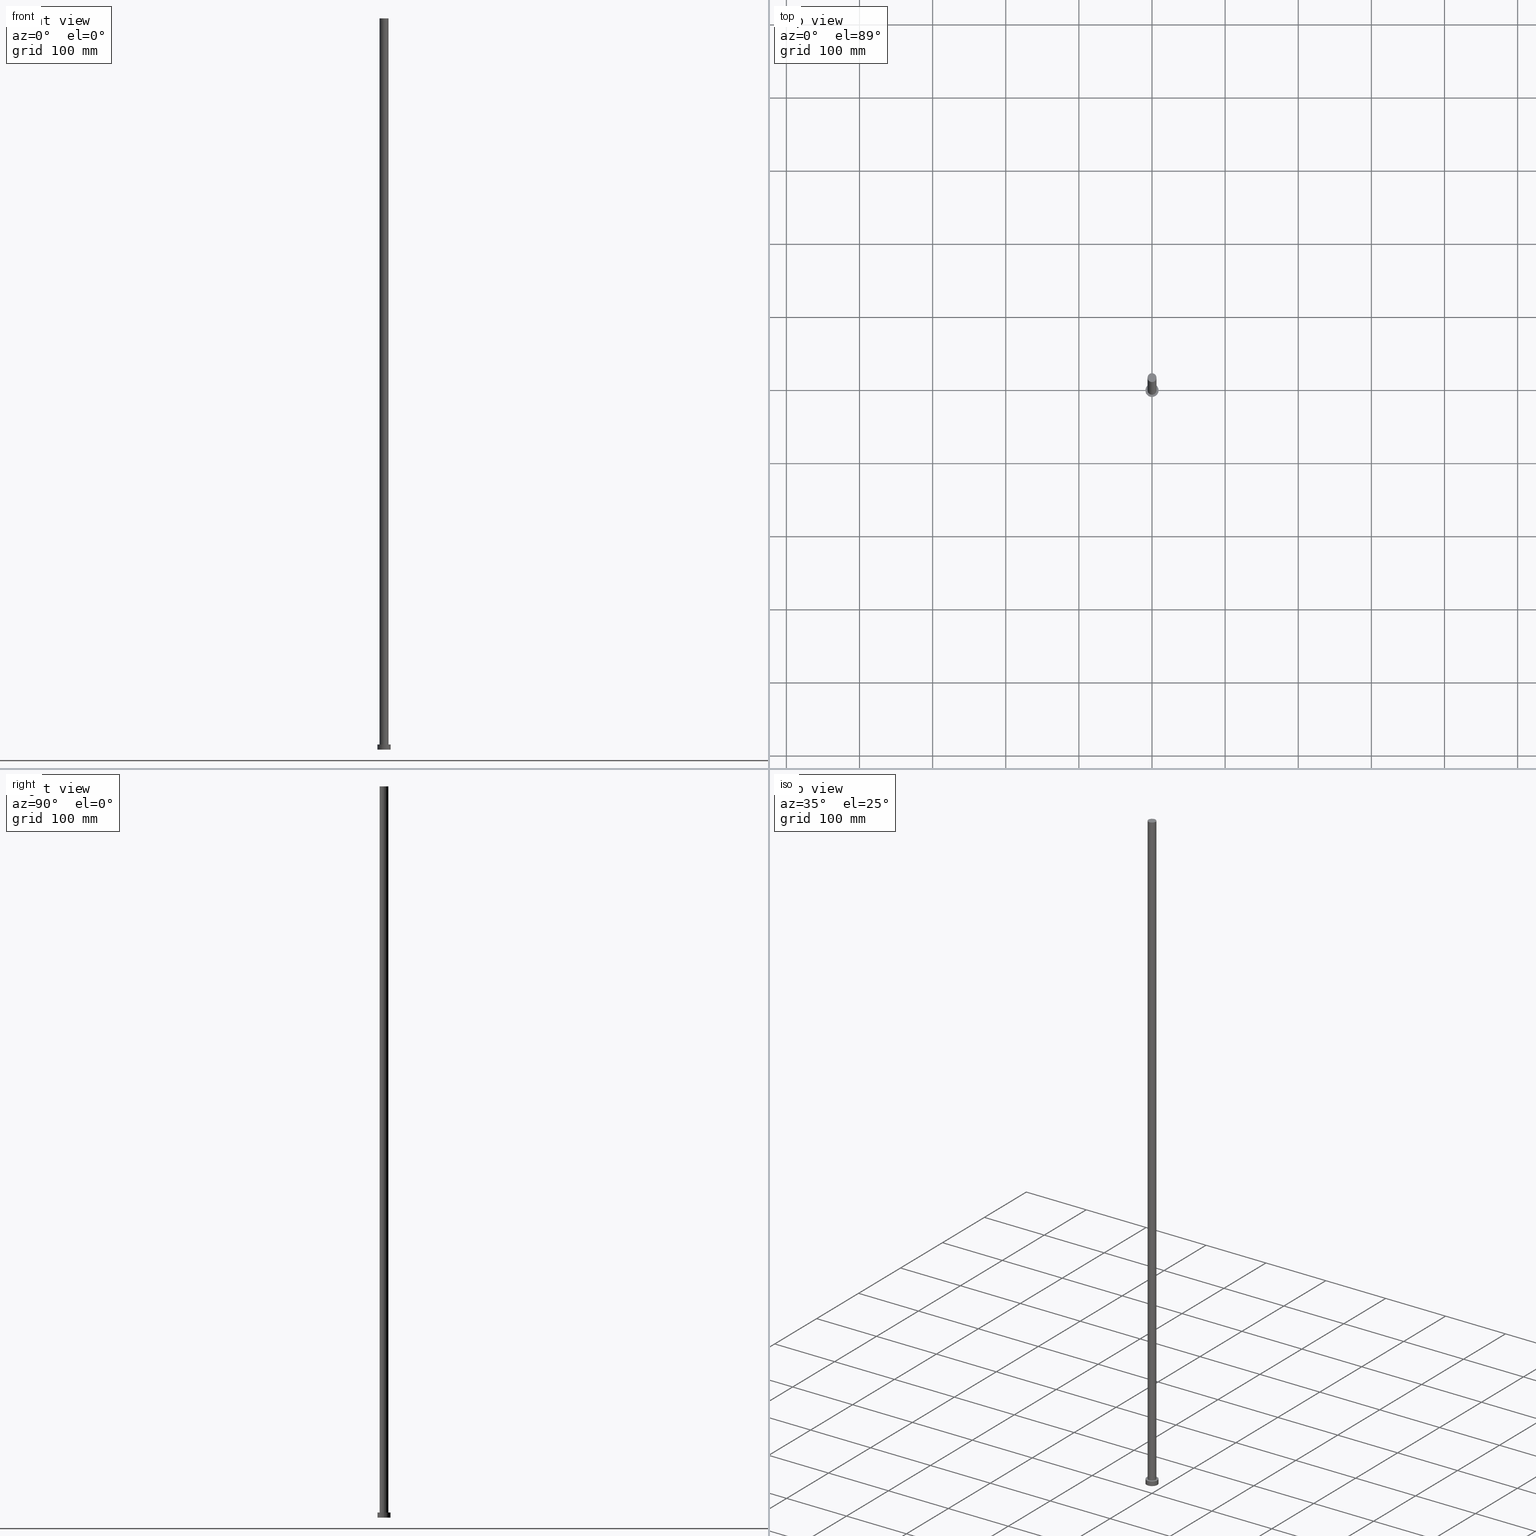
[diagram: canonical four-view strip — front | top / right | iso, engineering-drawing reading convention]
A machine part, canonical four-view strip (front | top / right | iso — engineering-drawing reading convention). The complete STEP part file that produces these views, byte-faithful:
ISO-10303-21;
HEADER;
FILE_DESCRIPTION (( 'STEP AP203' ),
    '1' );
FILE_NAME ('6b9d.STEP',
    '2023-02-12T10:56:19',
    ( '' ),
    ( '' ),
    'SwSTEP 2.0',
    'SolidWorks 2019',
    '' );
FILE_SCHEMA (( 'CONFIG_CONTROL_DESIGN' ));
ENDSEC;

DATA;
#1 = FACE_OUTER_BOUND ( 'NONE', #127, .T. ) ;
#2 = DIRECTION ( 'NONE',  ( 1.000000000000000000, 0.000000000000000000, 0.000000000000000000 ) ) ;
#3 = APPROVAL ( #14, 'NEUR�EN�' ) ;
#4 = CIRCLE ( 'NONE', #69, 9.000000000000000000 ) ;
#5 = LINE ( 'NONE', #152, #67 ) ;
#6 =( LENGTH_UNIT ( ) NAMED_UNIT ( * ) SI_UNIT ( .MILLI., .METRE. ) );
#7 = VERTEX_POINT ( 'NONE', #109 ) ;
#8 = VERTEX_POINT ( 'NONE', #75 ) ;
#9 = DATE_AND_TIME ( #108, #221 ) ;
#10 = ORIENTED_EDGE ( 'NONE', *, *, #39, .T. ) ;
#11 = EDGE_CURVE ( 'NONE', #8, #7, #139, .T. ) ;
#12 = DIRECTION ( 'NONE',  ( 0.000000000000000000, 0.000000000000000000, 1.000000000000000000 ) ) ;
#13 = FACE_OUTER_BOUND ( 'NONE', #180, .T. ) ;
#14 = APPROVAL_STATUS ( 'not_yet_approved' ) ;
#15 = DIRECTION ( 'NONE',  ( 0.000000000000000000, 0.000000000000000000, 1.000000000000000000 ) ) ;
#16 = CARTESIAN_POINT ( 'NONE',  ( 0.000000000000000000, 0.000000000000000000, 1000.000000000000000 ) ) ;
#17 = PERSON_AND_ORGANIZATION ( #27, #205 ) ;
#18 = PRODUCT_DEFINITION_FORMATION_WITH_SPECIFIED_SOURCE ( 'LIBOVOLN�', '', #112, .NOT_KNOWN. ) ;
#19 = DIRECTION ( 'NONE',  ( -1.000000000000000000, 0.000000000000000000, 0.000000000000000000 ) ) ;
#20 = CYLINDRICAL_SURFACE ( 'NONE', #45, 9.000000000000000000 ) ;
#21 = DATE_TIME_ROLE ( 'classification_date' ) ;
#22 = DIRECTION ( 'NONE',  ( -0.000000000000000000, -0.000000000000000000, -1.000000000000000000 ) ) ;
#23 = DIRECTION ( 'NONE',  ( -0.000000000000000000, -0.000000000000000000, -1.000000000000000000 ) ) ;
#24 = CC_DESIGN_PERSON_AND_ORGANIZATION_ASSIGNMENT ( #104, #92, ( #112 ) ) ;
#25 = AXIS2_PLACEMENT_3D ( 'NONE', #125, #192, #19 ) ;
#26 = ORIENTED_EDGE ( 'NONE', *, *, #250, .F. ) ;
#27 = PERSON ( 'NEUR�EN�', 'NEUR�EN�', 'NEUR�EN�', ('NEUR�EN�'), ('NEUR�EN�'), ('NEUR�EN�') ) ;
#28 = PRODUCT_RELATED_PRODUCT_CATEGORY ( 'detail', '', ( #112 ) ) ;
#29 = EDGE_LOOP ( 'NONE', ( #243, #31 ) ) ;
#30 = CALENDAR_DATE ( 2023, 12, 2 ) ;
#31 = ORIENTED_EDGE ( 'NONE', *, *, #85, .F. ) ;
#32 = FACE_OUTER_BOUND ( 'NONE', #44, .T. ) ;
#33 = COORDINATED_UNIVERSAL_TIME_OFFSET ( 1, 0, .AHEAD. ) ;
#34 = DIRECTION ( 'NONE',  ( -1.000000000000000000, 0.000000000000000000, 0.000000000000000000 ) ) ;
#35 = DIRECTION ( 'NONE',  ( 0.000000000000000000, 0.000000000000000000, 1.000000000000000000 ) ) ;
#36 = DIRECTION ( 'NONE',  ( 0.000000000000000000, 0.000000000000000000, 1.000000000000000000 ) ) ;
#37 = EDGE_CURVE ( 'NONE', #135, #216, #142, .T. ) ;
#38 = PLANE ( 'NONE',  #71 ) ;
#39 = EDGE_CURVE ( 'NONE', #176, #216, #110, .T. ) ;
#40 = FACE_BOUND ( 'NONE', #207, .T. ) ;
#41 = ORIENTED_EDGE ( 'NONE', *, *, #179, .T. ) ;
#42 = PLANE ( 'NONE',  #111 ) ;
#43 = ORIENTED_EDGE ( 'NONE', *, *, #11, .F. ) ;
#44 = EDGE_LOOP ( 'NONE', ( #222, #220, #10, #100 ) ) ;
#45 = AXIS2_PLACEMENT_3D ( 'NONE', #52, #122, #187 ) ;
#46 = APPROVAL ( #246, 'NEUR�EN�' ) ;
#47 = CC_DESIGN_SECURITY_CLASSIFICATION ( #151, ( #18 ) ) ;
#48 = PERSON_AND_ORGANIZATION_ROLE ( 'classification_officer' ) ;
#49 = APPROVAL_DATE_TIME ( #225, #46 ) ;
#50 = DIRECTION ( 'NONE',  ( 1.000000000000000000, 0.000000000000000000, 0.000000000000000000 ) ) ;
#51 = COORDINATED_UNIVERSAL_TIME_OFFSET ( 1, 0, .AHEAD. ) ;
#52 = CARTESIAN_POINT ( 'NONE',  ( 0.000000000000000000, 0.000000000000000000, 7.000000000000000000 ) ) ;
#53 = FACE_OUTER_BOUND ( 'NONE', #156, .T. ) ;
#54 = MECHANICAL_CONTEXT ( 'NONE', #248, 'mechanical' ) ;
#55 = DIRECTION ( 'NONE',  ( 1.000000000000000000, 0.000000000000000000, -0.000000000000000000 ) ) ;
#56 = DIRECTION ( 'NONE',  ( -0.000000000000000000, -0.000000000000000000, -1.000000000000000000 ) ) ;
#57 = CARTESIAN_POINT ( 'NONE',  ( 6.099999999999999645, 7.470345474798854293E-16, 1000.000000000000000 ) ) ;
#58 = CARTESIAN_POINT ( 'NONE',  ( 6.099999999999999645, 7.470345474798854293E-16, 1000.000000000000000 ) ) ;
#59 = APPROVAL_PERSON_ORGANIZATION ( #159, #3, #181 ) ;
#60 = FACE_OUTER_BOUND ( 'NONE', #29, .T. ) ;
#61 = CLOSED_SHELL ( 'NONE', ( #128, #219, #97, #155, #172, #118, #150 ) ) ;
#62 = AXIS2_PLACEMENT_3D ( 'NONE', #188, #164, #2 ) ;
#63 = ORIENTED_EDGE ( 'NONE', *, *, #39, .F. ) ;
#64 =( NAMED_UNIT ( * ) SI_UNIT ( $, .STERADIAN. ) SOLID_ANGLE_UNIT ( ) );
#65 = CC_DESIGN_DATE_AND_TIME_ASSIGNMENT ( #9, #105, ( #245 ) ) ;
#66 = CC_DESIGN_APPROVAL ( #78, ( #151 ) ) ;
#67 = VECTOR ( 'NONE', #23, 1000.000000000000000 ) ;
#68 = EDGE_CURVE ( 'NONE', #129, #135, #233, .T. ) ;
#69 = AXIS2_PLACEMENT_3D ( 'NONE', #183, #73, #50 ) ;
#70 = VERTEX_POINT ( 'NONE', #247 ) ;
#71 = AXIS2_PLACEMENT_3D ( 'NONE', #239, #204, #55 ) ;
#72 = COORDINATED_UNIVERSAL_TIME_OFFSET ( 1, 0, .AHEAD. ) ;
#73 = DIRECTION ( 'NONE',  ( 0.000000000000000000, 0.000000000000000000, 1.000000000000000000 ) ) ;
#74 = DIRECTION ( 'NONE',  ( 0.000000000000000000, 0.000000000000000000, 1.000000000000000000 ) ) ;
#75 = CARTESIAN_POINT ( 'NONE',  ( 9.000000000000000000, 1.102182119232617714E-15, 7.000000000000000000 ) ) ;
#76 = VECTOR ( 'NONE', #215, 1000.000000000000000 ) ;
#77 = ORIENTED_EDGE ( 'NONE', *, *, #168, .F. ) ;
#78 = APPROVAL ( #82, 'NEUR�EN�' ) ;
#79 = CARTESIAN_POINT ( 'NONE',  ( -6.099999999999999645, 0.000000000000000000, 1000.000000000000000 ) ) ;
#80 = LINE ( 'NONE', #58, #76 ) ;
#81 = DIRECTION ( 'NONE',  ( 0.000000000000000000, 0.000000000000000000, 1.000000000000000000 ) ) ;
#82 = APPROVAL_STATUS ( 'not_yet_approved' ) ;
#83 = LOCAL_TIME ( 11, 56, 19.00000000000000000, #72 ) ;
#84 = ADVANCED_BREP_SHAPE_REPRESENTATION ( '6b9d', ( #213, #157 ), #217 ) ;
#85 = EDGE_CURVE ( 'NONE', #70, #119, #4, .T. ) ;
#86 = EDGE_LOOP ( 'NONE', ( #130, #93 ) ) ;
#87 = AXIS2_PLACEMENT_3D ( 'NONE', #95, #15, #231 ) ;
#88 = ORIENTED_EDGE ( 'NONE', *, *, #106, .T. ) ;
#89 = CC_DESIGN_APPROVAL ( #3, ( #18 ) ) ;
#90 = ORIENTED_EDGE ( 'NONE', *, *, #145, .T. ) ;
#91 = AXIS2_PLACEMENT_3D ( 'NONE', #16, #96, #34 ) ;
#92 = PERSON_AND_ORGANIZATION_ROLE ( 'design_owner' ) ;
#93 = ORIENTED_EDGE ( 'NONE', *, *, #11, .T. ) ;
#94 = DATE_AND_TIME ( #116, #197 ) ;
#95 = CARTESIAN_POINT ( 'NONE',  ( 0.000000000000000000, 0.000000000000000000, 0.000000000000000000 ) ) ;
#96 = DIRECTION ( 'NONE',  ( -0.000000000000000000, -0.000000000000000000, -1.000000000000000000 ) ) ;
#97 = ADVANCED_FACE ( 'NONE', ( #13 ), #20, .T. ) ;
#98 = CARTESIAN_POINT ( 'NONE',  ( 0.000000000000000000, 0.000000000000000000, 7.000000000000000000 ) ) ;
#99 = VECTOR ( 'NONE', #232, 1000.000000000000000 ) ;
#100 = ORIENTED_EDGE ( 'NONE', *, *, #37, .F. ) ;
#101 = AXIS2_PLACEMENT_3D ( 'NONE', #214, #81, #184 ) ;
#102 = ORIENTED_EDGE ( 'NONE', *, *, #230, .F. ) ;
#103 = ORIENTED_EDGE ( 'NONE', *, *, #179, .F. ) ;
#104 = PERSON_AND_ORGANIZATION ( #27, #205 ) ;
#105 = DATE_TIME_ROLE ( 'creation_date' ) ;
#106 = EDGE_CURVE ( 'NONE', #119, #70, #131, .T. ) ;
#107 = CYLINDRICAL_SURFACE ( 'NONE', #240, 6.099999999999999645 ) ;
#108 = CALENDAR_DATE ( 2023, 12, 2 ) ;
#109 = CARTESIAN_POINT ( 'NONE',  ( -9.000000000000000000, 0.000000000000000000, 7.000000000000000000 ) ) ;
#110 = CIRCLE ( 'NONE', #101, 6.099999999999999645 ) ;
#111 = AXIS2_PLACEMENT_3D ( 'NONE', #196, #175, #235 ) ;
#112 = PRODUCT ( '6b9d', '6b9d', '', ( #54 ) ) ;
#113 = CARTESIAN_POINT ( 'NONE',  ( 0.000000000000000000, 0.000000000000000000, 1000.000000000000000 ) ) ;
#114 = LOCAL_TIME ( 11, 56, 19.00000000000000000, #166 ) ;
#115 = CC_DESIGN_PERSON_AND_ORGANIZATION_ASSIGNMENT ( #224, #48, ( #151 ) ) ;
#116 = CALENDAR_DATE ( 2023, 12, 2 ) ;
#117 = CC_DESIGN_APPROVAL ( #46, ( #245 ) ) ;
#118 = ADVANCED_FACE ( 'NONE', ( #53 ), #107, .T. ) ;
#119 = VERTEX_POINT ( 'NONE', #208 ) ;
#120 = CALENDAR_DATE ( 2023, 12, 2 ) ;
#121 = PRODUCT_DEFINITION_SHAPE ( 'NONE', 'NONE',  #245 ) ;
#122 = DIRECTION ( 'NONE',  ( -0.000000000000000000, -0.000000000000000000, -1.000000000000000000 ) ) ;
#123 = CARTESIAN_POINT ( 'NONE',  ( 6.099999999999999645, 7.470345474798854293E-16, 7.000000000000000000 ) ) ;
#124 = DIRECTION ( 'NONE',  ( -1.000000000000000000, 0.000000000000000000, 0.000000000000000000 ) ) ;
#125 = CARTESIAN_POINT ( 'NONE',  ( 0.000000000000000000, 0.000000000000000000, 7.000000000000000000 ) ) ;
#126 = CARTESIAN_POINT ( 'NONE',  ( -6.099999999999999645, 0.000000000000000000, 1000.000000000000000 ) ) ;
#127 = EDGE_LOOP ( 'NONE', ( #90, #237 ) ) ;
#128 = ADVANCED_FACE ( 'NONE', ( #32 ), #211, .T. ) ;
#129 = VERTEX_POINT ( 'NONE', #57 ) ;
#130 = ORIENTED_EDGE ( 'NONE', *, *, #223, .T. ) ;
#131 = CIRCLE ( 'NONE', #87, 9.000000000000000000 ) ;
#132 = APPROVAL_PERSON_ORGANIZATION ( #170, #78, #148 ) ;
#133 = CC_DESIGN_DATE_AND_TIME_ASSIGNMENT ( #193, #21, ( #151 ) ) ;
#134 = APPROVAL_DATE_TIME ( #141, #3 ) ;
#135 = VERTEX_POINT ( 'NONE', #126 ) ;
#136 = ORIENTED_EDGE ( 'NONE', *, *, #223, .F. ) ;
#137 = CARTESIAN_POINT ( 'NONE',  ( 0.000000000000000000, 0.000000000000000000, 0.000000000000000000 ) ) ;
#138 = APPROVAL_ROLE ( '' ) ;
#139 = CIRCLE ( 'NONE', #62, 9.000000000000000000 ) ;
#140 = DIRECTION ( 'NONE',  ( 1.000000000000000000, 0.000000000000000000, 0.000000000000000000 ) ) ;
#141 = DATE_AND_TIME ( #30, #83 ) ;
#142 = LINE ( 'NONE', #79, #99 ) ;
#143 = CYLINDRICAL_SURFACE ( 'NONE', #25, 9.000000000000000000 ) ;
#144 = DIRECTION ( 'NONE',  ( 0.000000000000000000, 0.000000000000000000, 1.000000000000000000 ) ) ;
#145 = EDGE_CURVE ( 'NONE', #135, #129, #186, .T. ) ;
#146 = PLANE ( 'NONE',  #190 ) ;
#147 = CIRCLE ( 'NONE', #244, 9.000000000000000000 ) ;
#148 = APPROVAL_ROLE ( '' ) ;
#149 = LINE ( 'NONE', #255, #182 ) ;
#150 = ADVANCED_FACE ( 'NONE', ( #1 ), #146, .T. ) ;
#151 = SECURITY_CLASSIFICATION ( '', '', #252 ) ;
#152 = CARTESIAN_POINT ( 'NONE',  ( 9.000000000000000000, 1.102182119232617714E-15, 7.000000000000000000 ) ) ;
#153 = AXIS2_PLACEMENT_3D ( 'NONE', #161, #165, #229 ) ;
#154 = EDGE_LOOP ( 'NONE', ( #43, #202, #171, #102 ) ) ;
#155 = ADVANCED_FACE ( 'NONE', ( #40, #173 ), #42, .T. ) ;
#156 = EDGE_LOOP ( 'NONE', ( #26, #241, #251, #41 ) ) ;
#157 = AXIS2_PLACEMENT_3D ( 'NONE', #137, #12, #160 ) ;
#158 = UNCERTAINTY_MEASURE_WITH_UNIT (LENGTH_MEASURE( 1.000000000000000082E-05 ), #6, 'distance_accuracy_value', 'NONE');
#159 = PERSON_AND_ORGANIZATION ( #27, #205 ) ;
#160 = DIRECTION ( 'NONE',  ( 1.000000000000000000, 0.000000000000000000, 0.000000000000000000 ) ) ;
#161 = CARTESIAN_POINT ( 'NONE',  ( 0.000000000000000000, 0.000000000000000000, 7.000000000000000000 ) ) ;
#162 = DESIGN_CONTEXT ( 'detailed design', #174, 'design' ) ;
#163 = PERSON_AND_ORGANIZATION ( #27, #205 ) ;
#164 = DIRECTION ( 'NONE',  ( 0.000000000000000000, 0.000000000000000000, 1.000000000000000000 ) ) ;
#165 = DIRECTION ( 'NONE',  ( 0.000000000000000000, 0.000000000000000000, 1.000000000000000000 ) ) ;
#166 = COORDINATED_UNIVERSAL_TIME_OFFSET ( 1, 0, .AHEAD. ) ;
#167 = DIRECTION ( 'NONE',  ( 1.000000000000000000, 0.000000000000000000, 0.000000000000000000 ) ) ;
#168 = EDGE_CURVE ( 'NONE', #8, #70, #5, .T. ) ;
#169 = DIRECTION ( 'NONE',  ( 1.000000000000000000, 0.000000000000000000, 0.000000000000000000 ) ) ;
#170 = PERSON_AND_ORGANIZATION ( #27, #205 ) ;
#171 = ORIENTED_EDGE ( 'NONE', *, *, #85, .T. ) ;
#172 = ADVANCED_FACE ( 'NONE', ( #60 ), #38, .F. ) ;
#173 = FACE_OUTER_BOUND ( 'NONE', #86, .T. ) ;
#174 = APPLICATION_CONTEXT ( 'configuration controlled 3d designs of mechanical parts and assemblies' ) ;
#175 = DIRECTION ( 'NONE',  ( 0.000000000000000000, 0.000000000000000000, 1.000000000000000000 ) ) ;
#176 = VERTEX_POINT ( 'NONE', #123 ) ;
#177 = COORDINATED_UNIVERSAL_TIME_OFFSET ( 1, 0, .AHEAD. ) ;
#178 = CIRCLE ( 'NONE', #153, 6.099999999999999645 ) ;
#179 = EDGE_CURVE ( 'NONE', #216, #176, #178, .T. ) ;
#180 = EDGE_LOOP ( 'NONE', ( #77, #136, #238, #88 ) ) ;
#181 = APPROVAL_ROLE ( '' ) ;
#182 = VECTOR ( 'NONE', #22, 1000.000000000000000 ) ;
#183 = CARTESIAN_POINT ( 'NONE',  ( 0.000000000000000000, 0.000000000000000000, 0.000000000000000000 ) ) ;
#184 = DIRECTION ( 'NONE',  ( 1.000000000000000000, 0.000000000000000000, 0.000000000000000000 ) ) ;
#185 = PERSON_AND_ORGANIZATION_ROLE ( 'creator' ) ;
#186 = CIRCLE ( 'NONE', #226, 6.099999999999999645 ) ;
#187 = DIRECTION ( 'NONE',  ( -1.000000000000000000, 0.000000000000000000, 0.000000000000000000 ) ) ;
#188 = CARTESIAN_POINT ( 'NONE',  ( 0.000000000000000000, 0.000000000000000000, 7.000000000000000000 ) ) ;
#189 = CARTESIAN_POINT ( 'NONE',  ( -6.099999999999999645, 0.000000000000000000, 7.000000000000000000 ) ) ;
#190 = AXIS2_PLACEMENT_3D ( 'NONE', #234, #74, #195 ) ;
#191 = PERSON_AND_ORGANIZATION ( #27, #205 ) ;
#192 = DIRECTION ( 'NONE',  ( -0.000000000000000000, -0.000000000000000000, -1.000000000000000000 ) ) ;
#193 = DATE_AND_TIME ( #194, #114 ) ;
#194 = CALENDAR_DATE ( 2023, 12, 2 ) ;
#195 = DIRECTION ( 'NONE',  ( 1.000000000000000000, 0.000000000000000000, -0.000000000000000000 ) ) ;
#196 = CARTESIAN_POINT ( 'NONE',  ( 0.000000000000000000, 0.000000000000000000, 7.000000000000000000 ) ) ;
#197 = LOCAL_TIME ( 11, 56, 19.00000000000000000, #177 ) ;
#198 = CC_DESIGN_PERSON_AND_ORGANIZATION_ASSIGNMENT ( #206, #185, ( #245 ) ) ;
#199 =( NAMED_UNIT ( * ) PLANE_ANGLE_UNIT ( ) SI_UNIT ( $, .RADIAN. ) );
#200 = AXIS2_PLACEMENT_3D ( 'NONE', #212, #35, #140 ) ;
#201 = CC_DESIGN_PERSON_AND_ORGANIZATION_ASSIGNMENT ( #163, #209, ( #18 ) ) ;
#202 = ORIENTED_EDGE ( 'NONE', *, *, #168, .T. ) ;
#203 = PERSON_AND_ORGANIZATION_ROLE ( 'design_supplier' ) ;
#204 = DIRECTION ( 'NONE',  ( 0.000000000000000000, 0.000000000000000000, 1.000000000000000000 ) ) ;
#205 = ORGANIZATION ( 'NEUR�EN�', 'NEUR�EN�', '' ) ;
#206 = PERSON_AND_ORGANIZATION ( #27, #205 ) ;
#207 = EDGE_LOOP ( 'NONE', ( #103, #63 ) ) ;
#208 = CARTESIAN_POINT ( 'NONE',  ( -9.000000000000000000, 0.000000000000000000, 0.000000000000000000 ) ) ;
#209 = PERSON_AND_ORGANIZATION_ROLE ( 'creator' ) ;
#210 = CC_DESIGN_PERSON_AND_ORGANIZATION_ASSIGNMENT ( #17, #203, ( #18 ) ) ;
#211 = CYLINDRICAL_SURFACE ( 'NONE', #91, 6.099999999999999645 ) ;
#212 = CARTESIAN_POINT ( 'NONE',  ( 0.000000000000000000, 0.000000000000000000, 1000.000000000000000 ) ) ;
#213 = MANIFOLD_SOLID_BREP ( 'P�idat vysunut�m3', #61 ) ;
#214 = CARTESIAN_POINT ( 'NONE',  ( 0.000000000000000000, 0.000000000000000000, 7.000000000000000000 ) ) ;
#215 = DIRECTION ( 'NONE',  ( -0.000000000000000000, -0.000000000000000000, -1.000000000000000000 ) ) ;
#216 = VERTEX_POINT ( 'NONE', #189 ) ;
#217 =( GEOMETRIC_REPRESENTATION_CONTEXT ( 3 ) GLOBAL_UNCERTAINTY_ASSIGNED_CONTEXT ( ( #158 ) ) GLOBAL_UNIT_ASSIGNED_CONTEXT ( ( #6, #199, #64 ) ) REPRESENTATION_CONTEXT ( 'NONE', 'WORKASPACE' ) );
#218 = APPLICATION_PROTOCOL_DEFINITION ( 'international standard', 'config_control_design', 1994, #174 ) ;
#219 = ADVANCED_FACE ( 'NONE', ( #253 ), #143, .T. ) ;
#220 = ORIENTED_EDGE ( 'NONE', *, *, #250, .T. ) ;
#221 = LOCAL_TIME ( 11, 56, 19.00000000000000000, #33 ) ;
#222 = ORIENTED_EDGE ( 'NONE', *, *, #68, .F. ) ;
#223 = EDGE_CURVE ( 'NONE', #7, #8, #147, .T. ) ;
#224 = PERSON_AND_ORGANIZATION ( #27, #205 ) ;
#225 = DATE_AND_TIME ( #120, #227 ) ;
#226 = AXIS2_PLACEMENT_3D ( 'NONE', #113, #36, #169 ) ;
#227 = LOCAL_TIME ( 11, 56, 19.00000000000000000, #51 ) ;
#228 = APPLICATION_PROTOCOL_DEFINITION ( 'international standard', 'config_control_design', 1994, #248 ) ;
#229 = DIRECTION ( 'NONE',  ( 1.000000000000000000, 0.000000000000000000, 0.000000000000000000 ) ) ;
#230 = EDGE_CURVE ( 'NONE', #7, #119, #149, .T. ) ;
#231 = DIRECTION ( 'NONE',  ( 1.000000000000000000, 0.000000000000000000, 0.000000000000000000 ) ) ;
#232 = DIRECTION ( 'NONE',  ( -0.000000000000000000, -0.000000000000000000, -1.000000000000000000 ) ) ;
#233 = CIRCLE ( 'NONE', #200, 6.099999999999999645 ) ;
#234 = CARTESIAN_POINT ( 'NONE',  ( 0.000000000000000000, 0.000000000000000000, 1000.000000000000000 ) ) ;
#235 = DIRECTION ( 'NONE',  ( 1.000000000000000000, 0.000000000000000000, -0.000000000000000000 ) ) ;
#236 = APPROVAL_PERSON_ORGANIZATION ( #191, #46, #138 ) ;
#237 = ORIENTED_EDGE ( 'NONE', *, *, #68, .T. ) ;
#238 = ORIENTED_EDGE ( 'NONE', *, *, #230, .T. ) ;
#239 = CARTESIAN_POINT ( 'NONE',  ( 0.000000000000000000, 0.000000000000000000, 0.000000000000000000 ) ) ;
#240 = AXIS2_PLACEMENT_3D ( 'NONE', #254, #56, #124 ) ;
#241 = ORIENTED_EDGE ( 'NONE', *, *, #145, .F. ) ;
#242 = SHAPE_DEFINITION_REPRESENTATION ( #121, #84 ) ;
#243 = ORIENTED_EDGE ( 'NONE', *, *, #106, .F. ) ;
#244 = AXIS2_PLACEMENT_3D ( 'NONE', #98, #144, #167 ) ;
#245 = PRODUCT_DEFINITION ( 'NEZN�M�', '', #18, #162 ) ;
#246 = APPROVAL_STATUS ( 'not_yet_approved' ) ;
#247 = CARTESIAN_POINT ( 'NONE',  ( 9.000000000000000000, 1.102182119232617714E-15, 0.000000000000000000 ) ) ;
#248 = APPLICATION_CONTEXT ( 'configuration controlled 3d designs of mechanical parts and assemblies' ) ;
#249 = APPROVAL_DATE_TIME ( #94, #78 ) ;
#250 = EDGE_CURVE ( 'NONE', #129, #176, #80, .T. ) ;
#251 = ORIENTED_EDGE ( 'NONE', *, *, #37, .T. ) ;
#252 = SECURITY_CLASSIFICATION_LEVEL ( 'unclassified' ) ;
#253 = FACE_OUTER_BOUND ( 'NONE', #154, .T. ) ;
#254 = CARTESIAN_POINT ( 'NONE',  ( 0.000000000000000000, 0.000000000000000000, 1000.000000000000000 ) ) ;
#255 = CARTESIAN_POINT ( 'NONE',  ( -9.000000000000000000, 0.000000000000000000, 7.000000000000000000 ) ) ;
ENDSEC;
END-ISO-10303-21;
